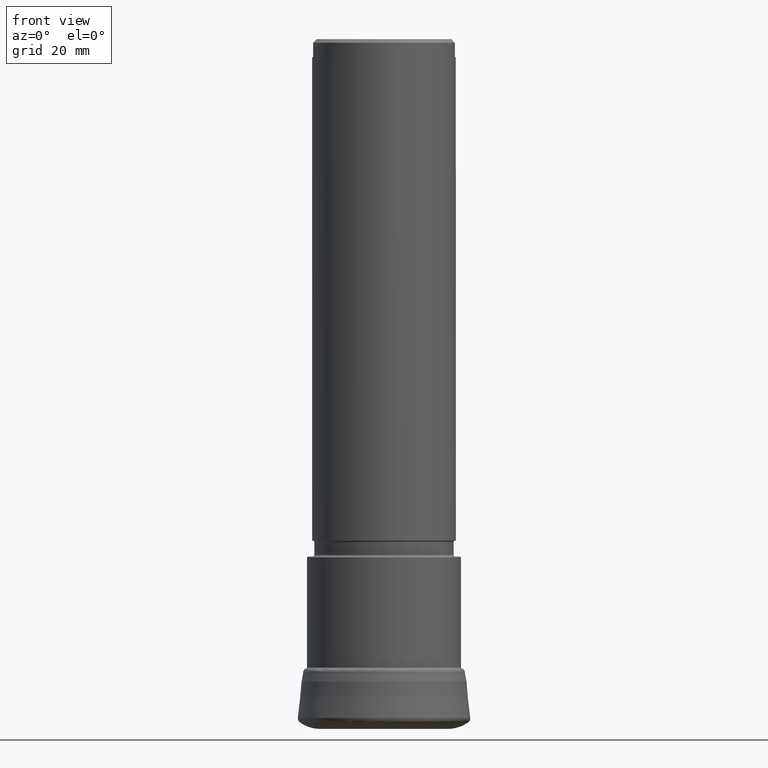
[diagram: clean part render]
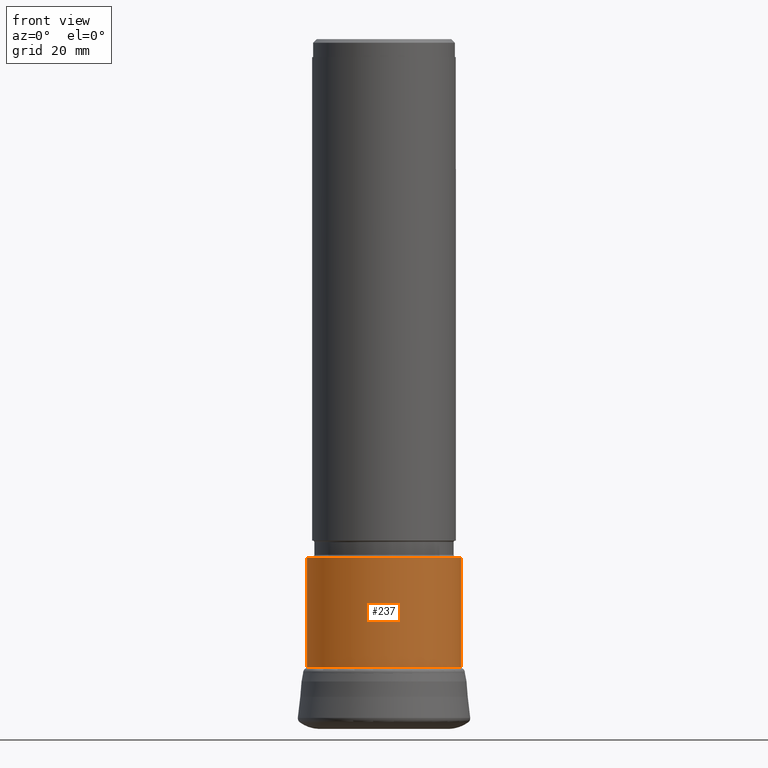
[diagram: same view with one face highlighted and labeled with its STEP entity id]
A machine part, front view. The second image highlights one B-rep face of the part: STEP entity #237.
In plain terms, the highlighted cylindrical surface (bore or boss wall) has radius 17 mm, axis along (0, 0, -1).
Its self-contained STEP definition (entity closure, byte-faithful):
#109=CYLINDRICAL_SURFACE('',#917,17.0000000000001);
#237=ADVANCED_FACE('',(#405,#406),#109,.T.);
#405=FACE_BOUND('',#503,.T.);
#406=FACE_BOUND('',#504,.T.);
#503=EDGE_LOOP('',(#633));
#504=EDGE_LOOP('',(#634));
#633=ORIENTED_EDGE('',*,*,#766,.T.);
#634=ORIENTED_EDGE('',*,*,#803,.T.);
#702=VERTEX_POINT('',#1351);
#731=VERTEX_POINT('',#1511);
#766=EDGE_CURVE('',#702,#702,#839,.T.);
#803=EDGE_CURVE('',#731,#731,#849,.T.);
#839=CIRCLE('',#885,17.0000000000001);
#849=CIRCLE('',#914,17.0000000000001);
#885=AXIS2_PLACEMENT_3D('',#1350,#1025,#1026);
#914=AXIS2_PLACEMENT_3D('',#1510,#1099,#1100);
#917=AXIS2_PLACEMENT_3D('',#1514,#1105,#1106);
#1025=DIRECTION('',(0.,0.,-1.));
#1026=DIRECTION('',(-1.,0.,0.));
#1099=DIRECTION('',(0.,0.,1.));
#1100=DIRECTION('',(-1.,0.,0.));
#1105=DIRECTION('',(0.,0.,-1.));
#1106=DIRECTION('',(-1.,0.,0.));
#1350=CARTESIAN_POINT('',(0.,0.,37.9));
#1351=CARTESIAN_POINT('',(-17.0000000000001,0.,37.9));
#1510=CARTESIAN_POINT('',(0.,0.,13.668893057023));
#1511=CARTESIAN_POINT('',(-17.0000000000001,0.,13.668893057023));
#1514=CARTESIAN_POINT('',(0.,0.,152.4));